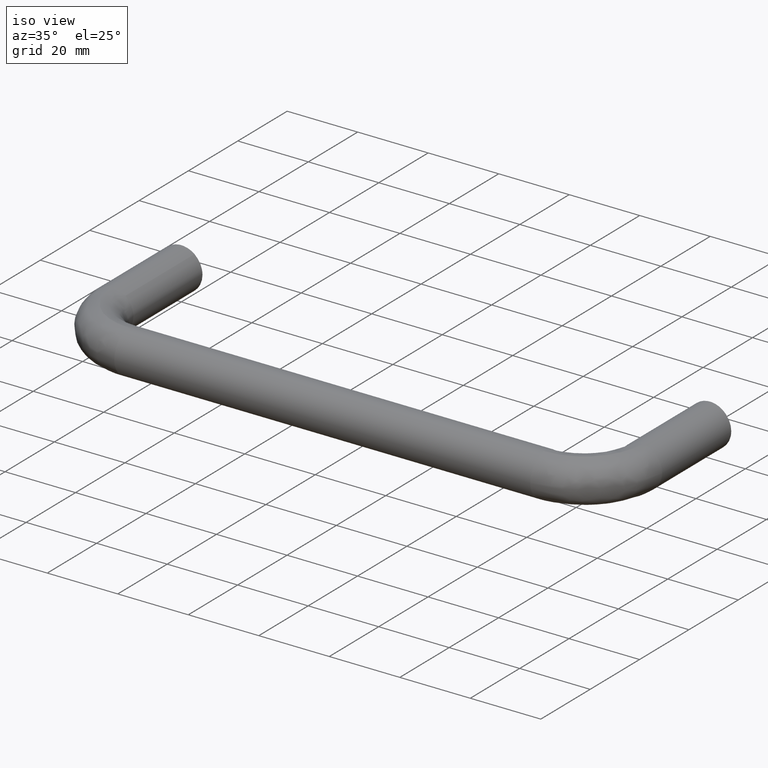
[diagram: clean part render]
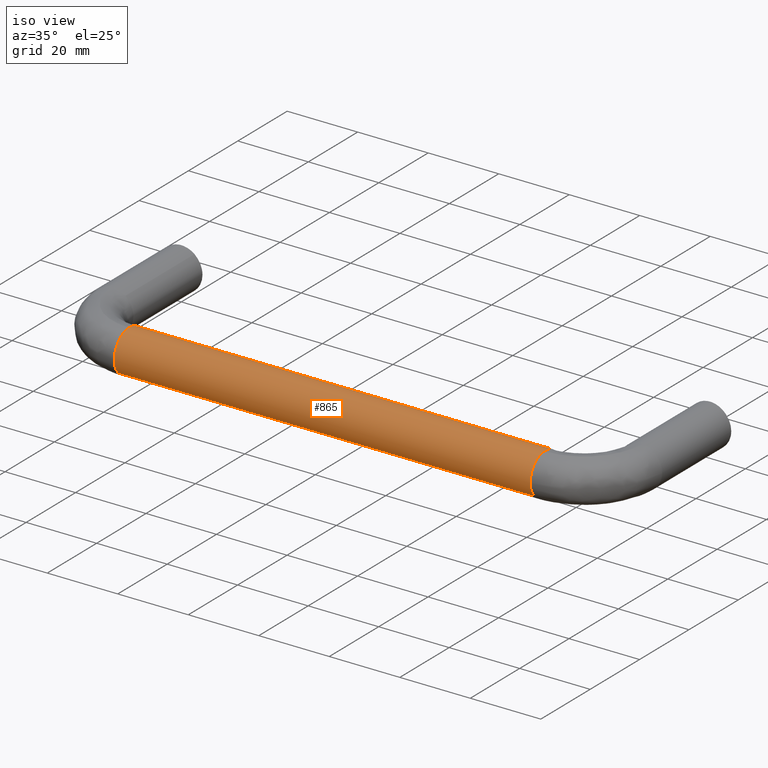
[diagram: same view with one face highlighted and labeled with its STEP entity id]
A machine part, iso view. The second image highlights one B-rep face of the part: STEP entity #865.
In plain terms, the highlighted face is a freeform B-spline surface patch.
Its self-contained STEP definition (entity closure, byte-faithful):
#644=CARTESIAN_POINT('',(134.0,-48.467997434560971,-4.004622195006791));
#645=VERTEX_POINT('',#644);
#661=CARTESIAN_POINT('',(16.0,-48.467997402138543,-4.004622231180871));
#662=VERTEX_POINT('',#661);
#663=CARTESIAN_POINT('',(16.0,-48.467997402138543,-4.004622231180871));
#664=CARTESIAN_POINT('',(134.0,-48.467997434560971,-4.004622195006791));
#665=QUASI_UNIFORM_CURVE('',1,(#663,#664),.UNSPECIFIED.,.F.,.U.);
#666=EDGE_CURVE('',#662,#645,#665,.T.);
#700=CARTESIAN_POINT('',(16.0,-40.024282794942479,4.493737053432543));
#701=VERTEX_POINT('',#700);
#715=CARTESIAN_POINT('',(134.0,-40.024282833467112,4.493737087516170));
#716=VERTEX_POINT('',#715);
#717=CARTESIAN_POINT('',(16.0,-40.024282794942479,4.493737053432543));
#718=CARTESIAN_POINT('',(134.0,-40.024282833467112,4.493737087516170));
#719=QUASI_UNIFORM_CURVE('',1,(#717,#718),.UNSPECIFIED.,.F.,.U.);
#720=EDGE_CURVE('',#701,#716,#719,.T.);
#753=CARTESIAN_POINT('',(13.049999999089160,-40.024279710705578,4.493734324734011));
#754=CARTESIAN_POINT('',(13.049999999089156,-44.518014035439599,8.469454614028436));
#755=CARTESIAN_POINT('',(13.049999999089160,-48.493734324734007,3.975720289294424));
#756=CARTESIAN_POINT('',(13.049999999089154,-52.034080247159984,-0.025912832602382));
#757=CARTESIAN_POINT('',(13.049999999089161,-48.467994806516181,-4.004625127142923));
#758=CARTESIAN_POINT('',(137.023750001294300,-40.024279710705557,4.493734324734011));
#759=CARTESIAN_POINT('',(137.023750001294330,-44.518014035439585,8.469454614028436));
#760=CARTESIAN_POINT('',(137.023750001294300,-48.493734324734000,3.975720289294424));
#761=CARTESIAN_POINT('',(137.023750001294420,-52.034080247159977,-0.025912832602382));
#762=CARTESIAN_POINT('',(137.023750001294390,-48.467994806516153,-4.004625127142923));
#770=(BOUNDED_SURFACE()B_SPLINE_SURFACE(2,1,((#753,#758),(#754,#759),(#755,#760),(#756,#761),(#757,#762)),.UNSPECIFIED.,.F.,.F.,.U.)B_SPLINE_SURFACE_WITH_KNOTS((3,2,3),(2,2),(0.0,9.941125496954280,19.086960954152222),(0.0,123.973750002205190),.UNSPECIFIED.)GEOMETRIC_REPRESENTATION_ITEM()RATIONAL_B_SPLINE_SURFACE(((1.0,1.0),(0.707106781186548,0.707106781186548),(1.0,1.0),(0.730538238691624,0.730538238691624),(0.956886118190660,0.956886118190660)))REPRESENTATION_ITEM('')SURFACE());
#771=CARTESIAN_POINT('',(134.0,-49.999999999999993,0.0));
#772=VERTEX_POINT('',#771);
#773=CARTESIAN_POINT('',(133.999999999999940,-48.467997434560971,-4.004622195006791));
#774=CARTESIAN_POINT('',(134.000000000000030,-50.0,-2.295351457645004));
#775=CARTESIAN_POINT('',(134.0,-49.999999999999993,0.0));
#783=(BOUNDED_CURVE()B_SPLINE_CURVE(2,(#773,#774,#775),.UNSPECIFIED.,.F.,.U.)B_SPLINE_CURVE_WITH_KNOTS((3,3),(0.383246058780717,0.500000000000000),.UNSPECIFIED.)CURVE()GEOMETRIC_REPRESENTATION_ITEM()RATIONAL_B_SPLINE_CURVE((0.854190702669256,0.863214249388510,1.0))REPRESENTATION_ITEM(''));
#784=EDGE_CURVE('',#645,#772,#783,.T.);
#785=ORIENTED_EDGE('',*,*,#784,.T.);
#786=CARTESIAN_POINT('',(134.000000000308290,-44.418399511450268,5.985394042902953));
#787=VERTEX_POINT('',#786);
#788=CARTESIAN_POINT('',(134.0,-49.999999999999993,0.0));
#789=CARTESIAN_POINT('',(134.0,-49.999999999999993,5.595221079855810));
#790=CARTESIAN_POINT('',(134.000000000308320,-44.418399511450268,5.985394042902953));
#798=(BOUNDED_CURVE()B_SPLINE_CURVE(2,(#788,#789,#790),.UNSPECIFIED.,.F.,.U.)B_SPLINE_CURVE_WITH_KNOTS((3,3),(0.500000000000000,0.737833686420337),.UNSPECIFIED.)CURVE()GEOMETRIC_REPRESENTATION_ITEM()RATIONAL_B_SPLINE_CURVE((1.0,0.721360504168313,0.972879876144259))REPRESENTATION_ITEM(''));
#799=EDGE_CURVE('',#772,#787,#798,.T.);
#800=ORIENTED_EDGE('',*,*,#799,.T.);
#801=CARTESIAN_POINT('',(134.000000000308350,-44.418399511450268,5.985394042902953));
#802=CARTESIAN_POINT('',(133.999999999999970,-44.209454697253200,6.0));
#803=CARTESIAN_POINT('',(134.0,-44.0,6.0));
#804=CARTESIAN_POINT('',(134.0,-41.726805731813229,6.000000000000001));
#805=CARTESIAN_POINT('',(133.999999999999970,-40.024282833467112,4.493737087516169));
#813=(BOUNDED_CURVE()B_SPLINE_CURVE(2,(#801,#802,#803,#804,#805),.UNSPECIFIED.,.F.,.U.)B_SPLINE_CURVE_WITH_KNOTS((3,2,3),(0.737833686420337,0.750000000000000,0.865779783107242),.UNSPECIFIED.)CURVE()GEOMETRIC_REPRESENTATION_ITEM()RATIONAL_B_SPLINE_CURVE((0.972879876144259,0.985746277018234,1.0,0.864355546608786,0.854350176364253))REPRESENTATION_ITEM(''));
#814=EDGE_CURVE('',#787,#716,#813,.T.);
#815=ORIENTED_EDGE('',*,*,#814,.T.);
#816=ORIENTED_EDGE('',*,*,#720,.F.);
#817=CARTESIAN_POINT('',(15.999999999350271,-44.075396242914579,5.999526265177472));
#818=VERTEX_POINT('',#817);
#819=CARTESIAN_POINT('',(15.999999999350266,-44.075396242914579,5.999526265177472));
#820=CARTESIAN_POINT('',(15.999999999999996,-44.037699611566239,6.000000000000001));
#821=CARTESIAN_POINT('',(16.0,-44.0,6.0));
#822=CARTESIAN_POINT('',(15.999999999999996,-41.726805702402700,5.999999999999999));
#823=CARTESIAN_POINT('',(16.000000000000004,-40.024282794942479,4.493737053432543));
#831=(BOUNDED_CURVE()B_SPLINE_CURVE(2,(#819,#820,#821,#822,#823),.UNSPECIFIED.,.F.,.U.)B_SPLINE_CURVE_WITH_KNOTS((3,2,3),(0.747784295709823,0.750000000000000,0.865779784402009),.UNSPECIFIED.)CURVE()GEOMETRIC_REPRESENTATION_ITEM()RATIONAL_B_SPLINE_CURVE((0.994854295156289,0.997404140954045,1.0,0.864355545091872,0.854350176140473))REPRESENTATION_ITEM(''));
#832=EDGE_CURVE('',#818,#701,#831,.T.);
#833=ORIENTED_EDGE('',*,*,#832,.F.);
#834=CARTESIAN_POINT('',(16.0,-49.999999999999993,0.0));
#835=VERTEX_POINT('',#834);
#836=CARTESIAN_POINT('',(16.0,-49.999999999999993,0.0));
#837=CARTESIAN_POINT('',(16.000000000000004,-49.999999999999986,5.925071572304105));
#838=CARTESIAN_POINT('',(15.999999999350266,-44.075396242914579,5.999526265177472));
#846=(BOUNDED_CURVE()B_SPLINE_CURVE(2,(#836,#837,#838),.UNSPECIFIED.,.F.,.U.)B_SPLINE_CURVE_WITH_KNOTS((3,3),(0.500000000000000,0.747784295709823),.UNSPECIFIED.)CURVE()GEOMETRIC_REPRESENTATION_ITEM()RATIONAL_B_SPLINE_CURVE((1.0,0.709702640232502,0.994854295156289))REPRESENTATION_ITEM(''));
#847=EDGE_CURVE('',#835,#818,#846,.T.);
#848=ORIENTED_EDGE('',*,*,#847,.F.);
#849=CARTESIAN_POINT('',(15.999999999999998,-48.467997402138550,-4.004622231180871));
#850=CARTESIAN_POINT('',(15.999999999999998,-49.999999999999993,-2.295351485488466));
#851=CARTESIAN_POINT('',(16.0,-49.999999999999993,0.0));
#859=(BOUNDED_CURVE()B_SPLINE_CURVE(2,(#849,#850,#851),.UNSPECIFIED.,.F.,.U.)B_SPLINE_CURVE_WITH_KNOTS((3,3),(0.383246057558174,0.500000000000000),.UNSPECIFIED.)CURVE()GEOMETRIC_REPRESENTATION_ITEM()RATIONAL_B_SPLINE_CURVE((0.854190702480283,0.863214247956212,1.0))REPRESENTATION_ITEM(''));
#860=EDGE_CURVE('',#662,#835,#859,.T.);
#861=ORIENTED_EDGE('',*,*,#860,.F.);
#862=ORIENTED_EDGE('',*,*,#666,.T.);
#863=EDGE_LOOP('',(#785,#800,#815,#816,#833,#848,#861,#862));
#864=FACE_OUTER_BOUND('',#863,.T.);
#865=ADVANCED_FACE('',(#864),#770,.T.);